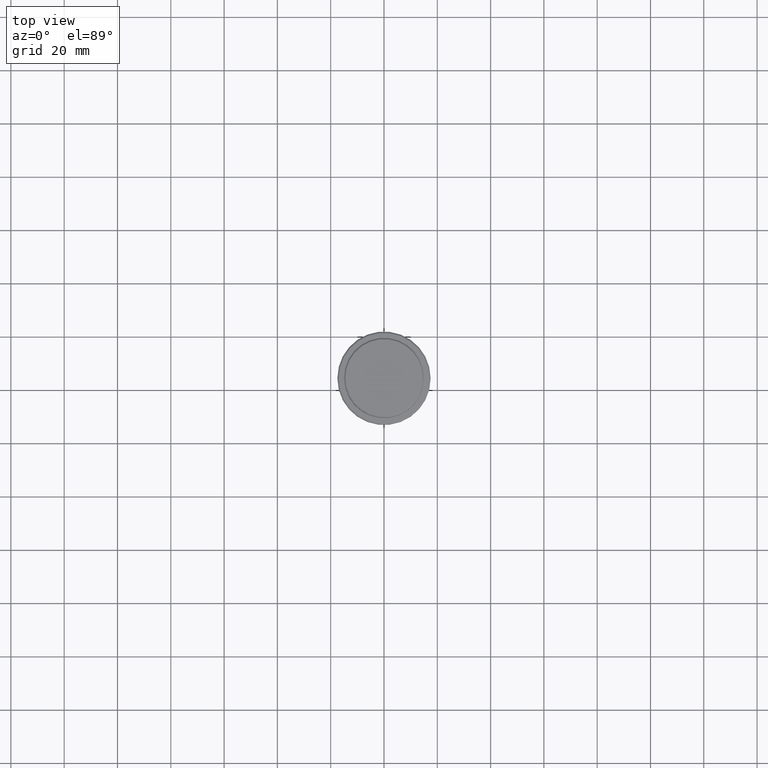
[diagram: clean part render]
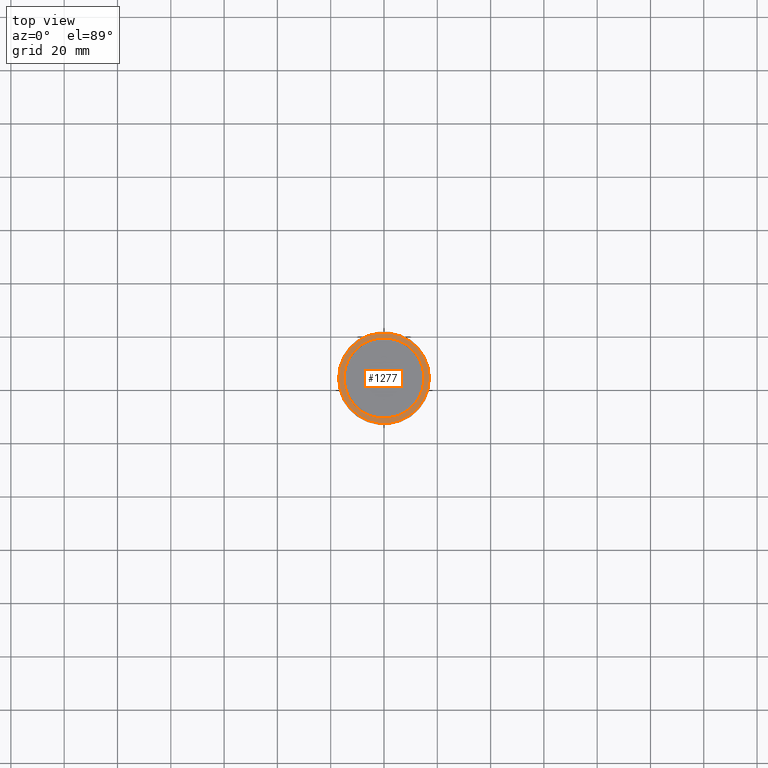
[diagram: same view with one face highlighted and labeled with its STEP entity id]
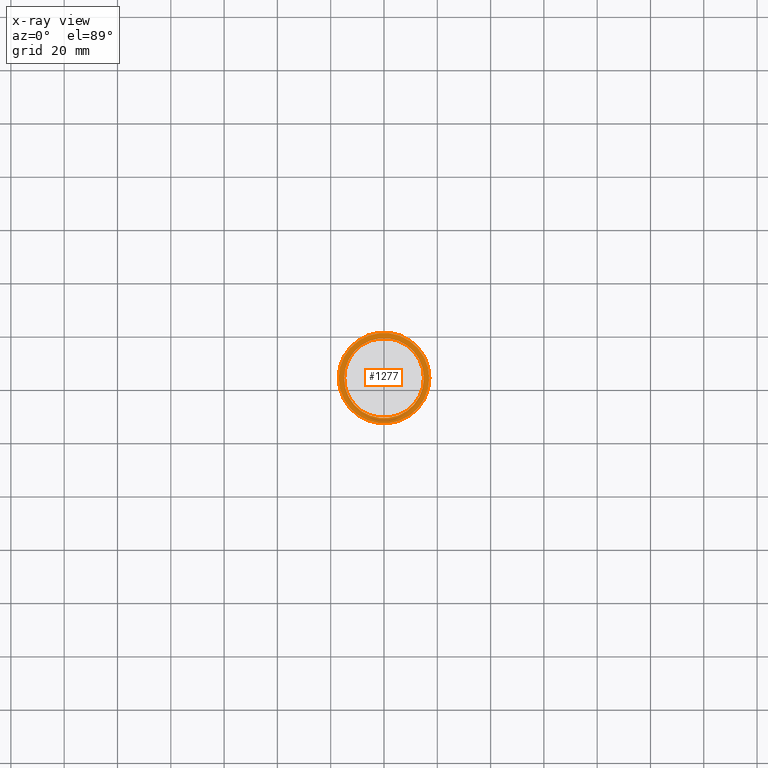
[diagram: x-ray of the same camera — body ghosted, the highlighted face saturated]
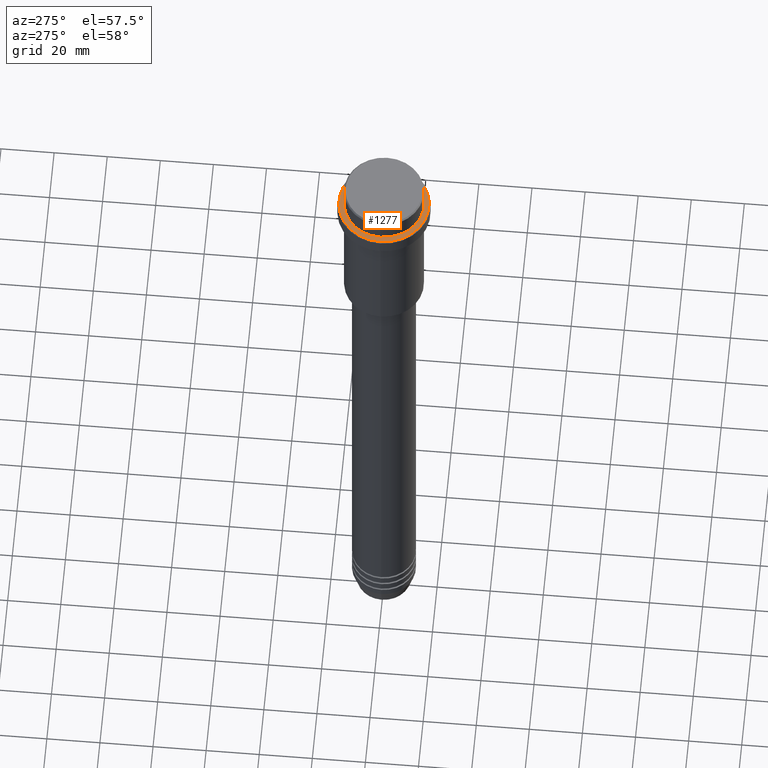
[diagram: same view with one face highlighted and labeled with its STEP entity id]
A machine part, top view. The second image highlights one B-rep face of the part: STEP entity #1277.
The next image is the same camera in x-ray: the body ghosted, the highlighted face saturated — about 0% of this face is hidden behind the body in this view.
A second angle (auxiliary view) of the same face is appended — the face is thin or edge-on in the first view.
In plain terms, the highlighted planar face has unit normal (0, -0, 1).
Its self-contained STEP definition (entity closure, byte-faithful):
#35 = EDGE_CURVE ( 'NONE', #1343, #277, #1406, .T. ) ;
#110 = DIRECTION ( 'NONE',  ( 1.000000000000000000, 0.000000000000000000, 0.000000000000000000 ) ) ;
#117 = AXIS2_PLACEMENT_3D ( 'NONE', #779, #1191, #537 ) ;
#154 = VERTEX_POINT ( 'NONE', #270 ) ;
#168 = DIRECTION ( 'NONE',  ( 0.000000000000000000, 0.000000000000000000, -1.000000000000000000 ) ) ;
#211 = AXIS2_PLACEMENT_3D ( 'NONE', #1253, #168, #1049 ) ;
#231 = EDGE_CURVE ( 'NONE', #613, #154, #746, .T. ) ;
#257 = EDGE_CURVE ( 'NONE', #154, #613, #1232, .T. ) ;
#270 = CARTESIAN_POINT ( 'NONE',  ( -16.99999999999996092, 0.000000000000000000, -9.000000000000000000 ) ) ;
#277 = VERTEX_POINT ( 'NONE', #494 ) ;
#323 = FACE_OUTER_BOUND ( 'NONE', #1362, .T. ) ;
#377 = CARTESIAN_POINT ( 'NONE',  ( 16.99999999999996092, 2.112515728529182095E-15, -9.000000000000000000 ) ) ;
#435 = AXIS2_PLACEMENT_3D ( 'NONE', #824, #716, #804 ) ;
#445 = CARTESIAN_POINT ( 'NONE',  ( -14.99999999999999289, 1.836970198721028800E-15, -9.000000000000000000 ) ) ;
#494 = CARTESIAN_POINT ( 'NONE',  ( 14.99999999999999289, 0.000000000000000000, -9.000000000000000000 ) ) ;
#524 = ORIENTED_EDGE ( 'NONE', *, *, #35, .T. ) ;
#537 = DIRECTION ( 'NONE',  ( 1.000000000000000000, 0.000000000000000000, 0.000000000000000000 ) ) ;
#554 = EDGE_CURVE ( 'NONE', #277, #1343, #574, .T. ) ;
#574 = CIRCLE ( 'NONE', #929, 14.99999999999999289 ) ;
#613 = VERTEX_POINT ( 'NONE', #377 ) ;
#640 = PLANE ( 'NONE',  #117 ) ;
#716 = DIRECTION ( 'NONE',  ( -0.000000000000000000, -0.000000000000000000, 1.000000000000000000 ) ) ;
#746 = CIRCLE ( 'NONE', #435, 16.99999999999996092 ) ;
#760 = FACE_BOUND ( 'NONE', #1229, .T. ) ;
#779 = CARTESIAN_POINT ( 'NONE',  ( 0.000000000000000000, 14.49999999999999467, -9.000000000000000000 ) ) ;
#797 = CARTESIAN_POINT ( 'NONE',  ( 0.000000000000000000, 0.000000000000000000, -9.000000000000000000 ) ) ;
#802 = ORIENTED_EDGE ( 'NONE', *, *, #231, .T. ) ;
#804 = DIRECTION ( 'NONE',  ( 1.000000000000000000, 0.000000000000000000, 0.000000000000000000 ) ) ;
#824 = CARTESIAN_POINT ( 'NONE',  ( 0.000000000000000000, 0.000000000000000000, -9.000000000000000000 ) ) ;
#929 = AXIS2_PLACEMENT_3D ( 'NONE', #1088, #1090, #110 ) ;
#1049 = DIRECTION ( 'NONE',  ( 1.000000000000000000, 0.000000000000000000, 0.000000000000000000 ) ) ;
#1088 = CARTESIAN_POINT ( 'NONE',  ( 0.000000000000000000, 0.000000000000000000, -9.000000000000000000 ) ) ;
#1090 = DIRECTION ( 'NONE',  ( 0.000000000000000000, 0.000000000000000000, -1.000000000000000000 ) ) ;
#1138 = ORIENTED_EDGE ( 'NONE', *, *, #554, .T. ) ;
#1191 = DIRECTION ( 'NONE',  ( 0.000000000000000000, -0.000000000000000000, 1.000000000000000000 ) ) ;
#1221 = DIRECTION ( 'NONE',  ( -0.000000000000000000, -0.000000000000000000, 1.000000000000000000 ) ) ;
#1229 = EDGE_LOOP ( 'NONE', ( #1138, #524 ) ) ;
#1232 = CIRCLE ( 'NONE', #1282, 16.99999999999996092 ) ;
#1248 = DIRECTION ( 'NONE',  ( 1.000000000000000000, 0.000000000000000000, 0.000000000000000000 ) ) ;
#1253 = CARTESIAN_POINT ( 'NONE',  ( 0.000000000000000000, 0.000000000000000000, -9.000000000000000000 ) ) ;
#1277 = ADVANCED_FACE ( 'NONE', ( #323, #760 ), #640, .T. ) ;
#1282 = AXIS2_PLACEMENT_3D ( 'NONE', #797, #1221, #1248 ) ;
#1343 = VERTEX_POINT ( 'NONE', #445 ) ;
#1362 = EDGE_LOOP ( 'NONE', ( #1369, #802 ) ) ;
#1369 = ORIENTED_EDGE ( 'NONE', *, *, #257, .T. ) ;
#1406 = CIRCLE ( 'NONE', #211, 14.99999999999999289 ) ;